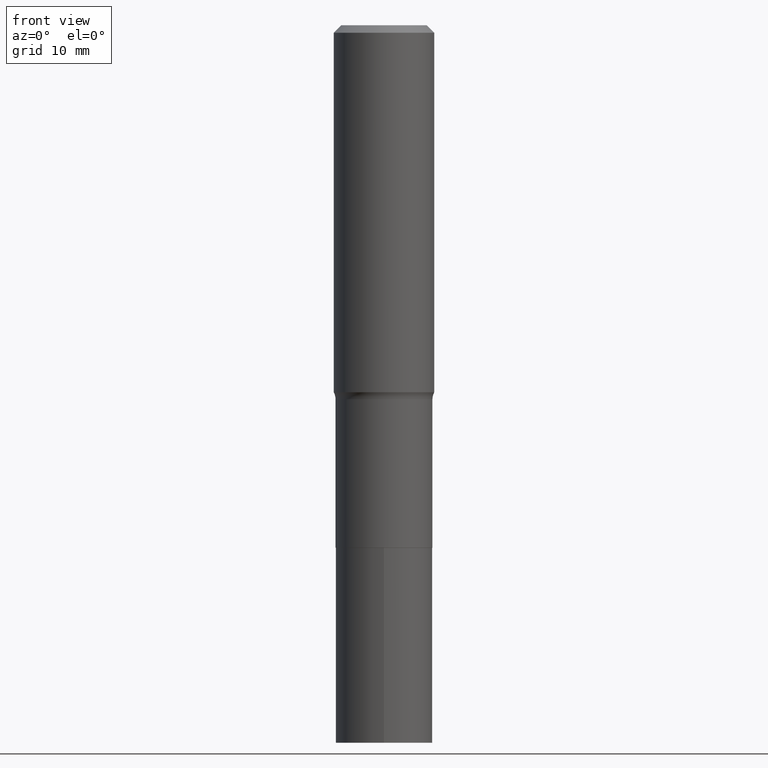
[diagram: clean part render]
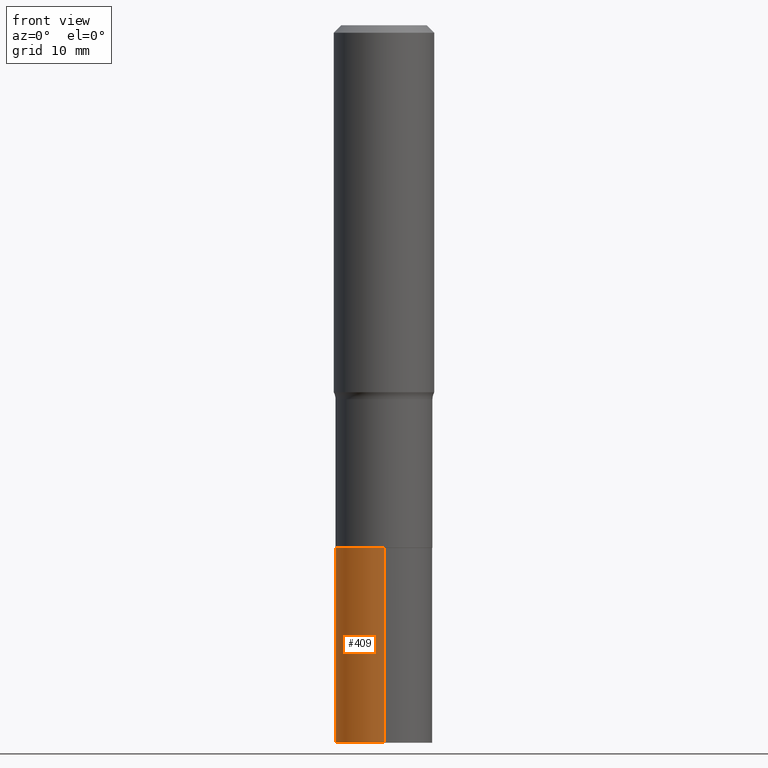
[diagram: same view with one face highlighted and labeled with its STEP entity id]
A machine part, front view. The second image highlights one B-rep face of the part: STEP entity #409.
In plain terms, the highlighted cylindrical surface (partial cylindrical patch) has radius 6.75 mm, axis along (-0, 0, 1).
Its self-contained STEP definition (entity closure, byte-faithful):
#1 = DIRECTION ( 'NONE',  ( -2.445918634677029817E-29, 3.490837158840106118E-15, 1.000000000000000000 ) ) ;
#6 = DIRECTION ( 'NONE',  ( -6.982962677686266711E-15, -1.000000000000000000, 4.111906669673397387E-15 ) ) ;
#45 = VERTEX_POINT ( 'NONE', #204 ) ;
#49 = CARTESIAN_POINT ( 'NONE',  ( 7.008713598526600652E-29, -1.000658551712445604E-14, -2.866000000000000103 ) ) ;
#62 = CIRCLE ( 'NONE', #434, 0.2657499999999999862 ) ;
#84 = EDGE_CURVE ( 'NONE', #164, #86, #270, .T. ) ;
#86 = VERTEX_POINT ( 'NONE', #374 ) ;
#95 = CARTESIAN_POINT ( 'NONE',  ( 9.628292456265704301E-29, -1.374527211424221215E-14, -3.937000000000001165 ) ) ;
#102 = EDGE_CURVE ( 'NONE', #45, #86, #62, .T. ) ;
#111 = CARTESIAN_POINT ( 'NONE',  ( 7.008713598526600652E-29, -1.000658551712445604E-14, -2.866000000000000103 ) ) ;
#141 = VERTEX_POINT ( 'NONE', #443 ) ;
#164 = VERTEX_POINT ( 'NONE', #309 ) ;
#204 = CARTESIAN_POINT ( 'NONE',  ( 1.888267320282562387E-15, 0.2657499999999899942, -2.866000000000000991 ) ) ;
#212 = DIRECTION ( 'NONE',  ( -6.982962677686266711E-15, -1.000000000000000000, 4.111906669673397387E-15 ) ) ;
#214 = CYLINDRICAL_SURFACE ( 'NONE', #295, 0.2657499999999999862 ) ;
#219 = FACE_OUTER_BOUND ( 'NONE', #398, .T. ) ;
#231 = CARTESIAN_POINT ( 'NONE',  ( -1.855722331595055138E-15, -0.2657500000000099782, -2.865999999999998771 ) ) ;
#236 = DIRECTION ( 'NONE',  ( -2.445918634677030097E-29, 3.490837158840106118E-15, 1.000000000000000000 ) ) ;
#270 = LINE ( 'NONE', #231, #303 ) ;
#285 = CARTESIAN_POINT ( 'NONE',  ( 1.888267320282535960E-15, 0.2657499999999899942, -2.866000000000000991 ) ) ;
#295 = AXIS2_PLACEMENT_3D ( 'NONE', #111, #435, #212 ) ;
#299 = ORIENTED_EDGE ( 'NONE', *, *, #102, .F. ) ;
#303 = VECTOR ( 'NONE', #405, 39.37007874015748143 ) ;
#309 = CARTESIAN_POINT ( 'NONE',  ( -1.855722331595028711E-15, -0.2657500000000137530, -3.937000000000000277 ) ) ;
#316 = ORIENTED_EDGE ( 'NONE', *, *, #402, .T. ) ;
#322 = CIRCLE ( 'NONE', #373, 0.2657499999999999862 ) ;
#346 = ORIENTED_EDGE ( 'NONE', *, *, #363, .F. ) ;
#356 = LINE ( 'NONE', #285, #420 ) ;
#363 = EDGE_CURVE ( 'NONE', #141, #45, #356, .T. ) ;
#373 = AXIS2_PLACEMENT_3D ( 'NONE', #95, #437, #6 ) ;
#374 = CARTESIAN_POINT ( 'NONE',  ( -1.855722331595055138E-15, -0.2657500000000099782, -2.865999999999998771 ) ) ;
#380 = ORIENTED_EDGE ( 'NONE', *, *, #84, .T. ) ;
#398 = EDGE_LOOP ( 'NONE', ( #346, #316, #380, #299 ) ) ;
#402 = EDGE_CURVE ( 'NONE', #141, #164, #322, .T. ) ;
#405 = DIRECTION ( 'NONE',  ( -2.445918634677029817E-29, 3.490837158840106118E-15, 1.000000000000000000 ) ) ;
#409 = ADVANCED_FACE ( 'NONE', ( #219 ), #214, .T. ) ;
#420 = VECTOR ( 'NONE', #1, 39.37007874015748143 ) ;
#434 = AXIS2_PLACEMENT_3D ( 'NONE', #49, #236, #446 ) ;
#435 = DIRECTION ( 'NONE',  ( -2.445918634677030097E-29, 3.490837158840106118E-15, 1.000000000000000000 ) ) ;
#437 = DIRECTION ( 'NONE',  ( -2.445918634677030097E-29, 3.490837158840106118E-15, 1.000000000000000000 ) ) ;
#443 = CARTESIAN_POINT ( 'NONE',  ( 1.888267320282549371E-15, 0.2657499999999862195, -3.937000000000002498 ) ) ;
#446 = DIRECTION ( 'NONE',  ( -6.982962677686266711E-15, -1.000000000000000000, 4.111906669673397387E-15 ) ) ;